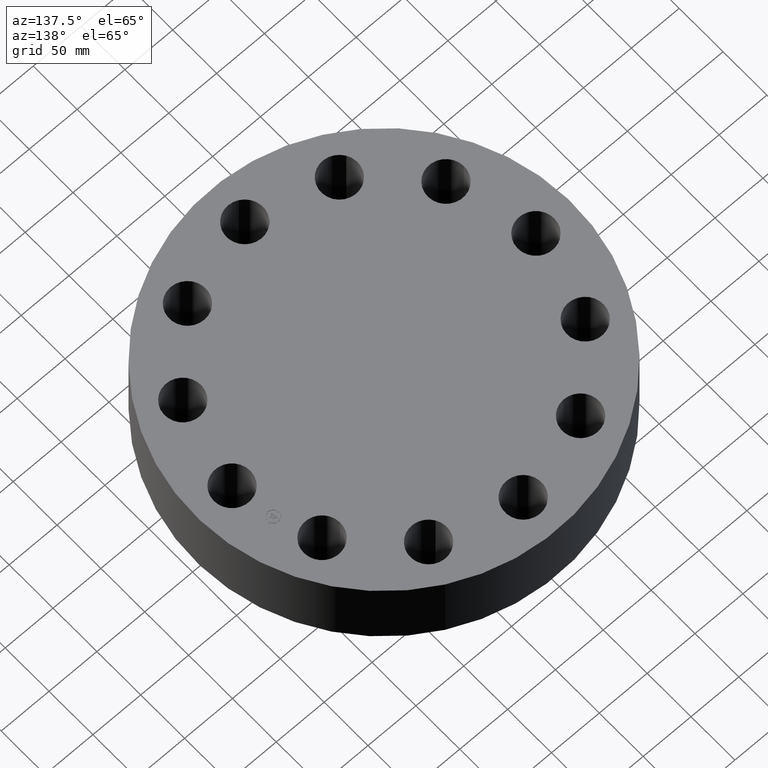
[diagram: clean part render]
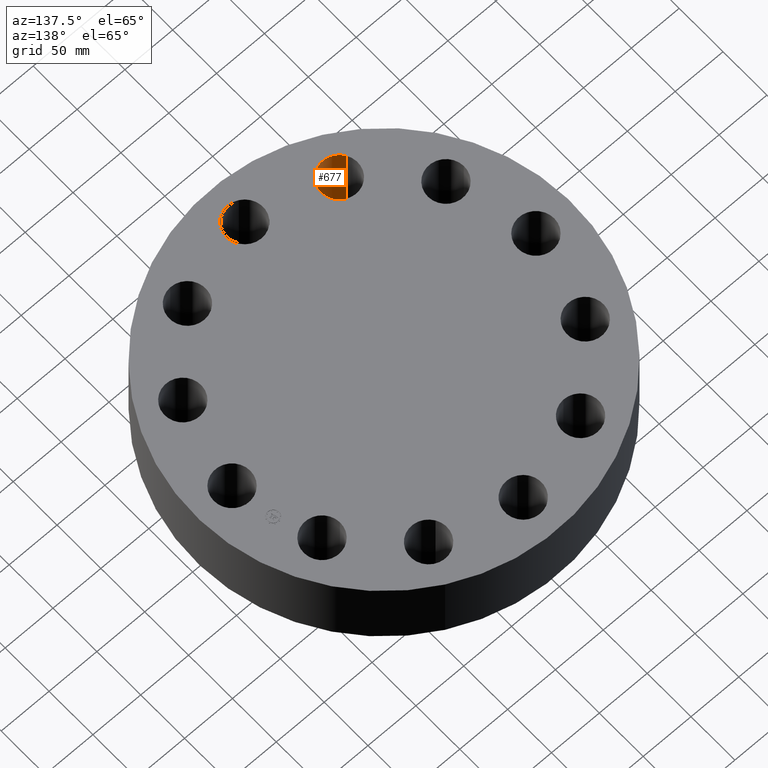
[diagram: same view with one face highlighted and labeled with its STEP entity id]
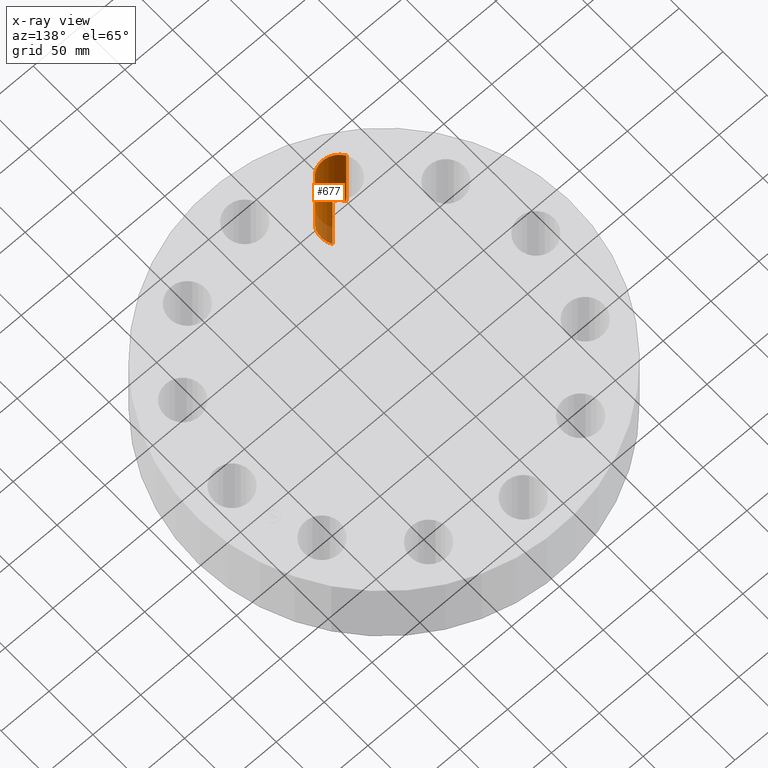
[diagram: x-ray of the same camera — body ghosted, the highlighted face saturated]
A machine part, auxiliary view. The second image highlights one B-rep face of the part: STEP entity #677.
The next image is the same camera in x-ray: the body ghosted, the highlighted face saturated — about 16% of this face is hidden behind the body in this view.
In plain terms, the highlighted cylindrical surface (edge-blend (fillet) strip) has radius 19.05 mm, axis along (-0, 0, -1).
Its self-contained STEP definition (entity closure, byte-faithful):
#289=AXIS2_PLACEMENT_3D('Circle Axis2P3D',#287,#288,$) ;
#650=AXIS2_PLACEMENT_3D('Cylinder Axis2P3D',#647,#648,#649) ;
#668=AXIS2_PLACEMENT_3D('Circle Axis2P3D',#666,#667,$) ;
#287=CARTESIAN_POINT('Axis2P3D Location',(-3.12500000001,-5.41265877367,0.)) ;
#291=CARTESIAN_POINT('Vertex',(-2.48451051756,-5.02243675626,0.)) ;
#293=CARTESIAN_POINT('Vertex',(-3.76548948246,-5.80288079109,-3.35689481461E-015)) ;
#647=CARTESIAN_POINT('Axis2P3D Location',(-3.12500000001,-5.41265877367,3.24606299214)) ;
#652=CARTESIAN_POINT('Line Origine',(-2.48451051756,-5.02243675626,1.62500000001)) ;
#656=CARTESIAN_POINT('Vertex',(-2.48451051756,-5.02243675626,3.25000000001)) ;
#659=CARTESIAN_POINT('Line Origine',(-3.76548948246,-5.80288079109,1.62500000001)) ;
#663=CARTESIAN_POINT('Vertex',(-3.76548948246,-5.80288079109,3.25000000001)) ;
#666=CARTESIAN_POINT('Axis2P3D Location',(-3.12500000001,-5.41265877367,3.25000000001)) ;
#288=DIRECTION('Axis2P3D Direction',(0.,0.,-0.0393700787402)) ;
#648=DIRECTION('Axis2P3D Direction',(-0.,0.,-0.0393700787402)) ;
#649=DIRECTION('Axis2P3D XDirection',(-0.0336214951417,-0.0204840954021,0.)) ;
#653=DIRECTION('Vector Direction',(0.,0.,-0.0393700787402)) ;
#660=DIRECTION('Vector Direction',(0.,0.,-0.0393700787402)) ;
#667=DIRECTION('Axis2P3D Direction',(-0.,0.,-0.0393700787402)) ;
#654=VECTOR('Line Direction',#653,0.0393700787402) ;
#661=VECTOR('Line Direction',#660,0.0393700787402) ;
#672=ORIENTED_EDGE('',*,*,#658,.F.) ;
#673=ORIENTED_EDGE('',*,*,#295,.T.) ;
#674=ORIENTED_EDGE('',*,*,#665,.T.) ;
#675=ORIENTED_EDGE('',*,*,#670,.F.) ;
#677=ADVANCED_FACE('PartBody',(#676),#651,.F.) ;
#290=CIRCLE('generated circle',#289,0.750000000003) ;
#669=CIRCLE('generated circle',#668,0.750000000003) ;
#651=CYLINDRICAL_SURFACE('generated cylinder',#650,0.750000000003) ;
#295=EDGE_CURVE('',#292,#294,#290,.T.) ;
#658=EDGE_CURVE('',#292,#657,#655,.F.) ;
#665=EDGE_CURVE('',#294,#664,#662,.F.) ;
#670=EDGE_CURVE('',#657,#664,#669,.T.) ;
#671=EDGE_LOOP('',(#672,#673,#674,#675)) ;
#676=FACE_OUTER_BOUND('',#671,.T.) ;
#655=LINE('Line',#652,#654) ;
#662=LINE('Line',#659,#661) ;
#292=VERTEX_POINT('',#291) ;
#294=VERTEX_POINT('',#293) ;
#657=VERTEX_POINT('',#656) ;
#664=VERTEX_POINT('',#663) ;